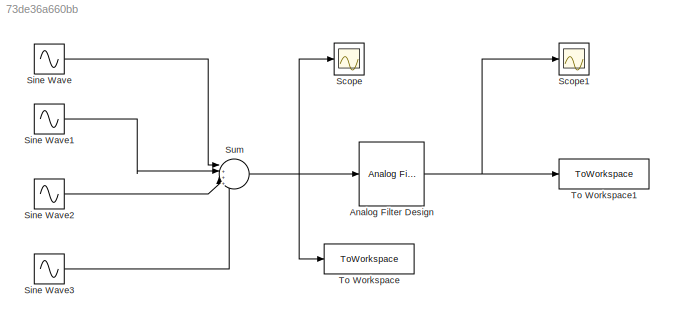
MODEL slx_73de36a660bb
KIND model
CONFIG AbsTol = auto
CONFIG EnableMultiTasking = off
CONFIG FixedStep = 1/512
CONFIG MaxStep = auto
CONFIG MinStep = auto
CONFIG RelTol = 1e-3
CONFIG SampleTimeConstraint = Unconstrained
CONFIG SolverName = FixedStepAuto
CONFIG StartTime = 0.0
CONFIG StopTime = 1.0
BLOCK [Reference] Analog Filter Design  REF=dsparch4/Analog
Filter Design
  SourceBlock = dsparch4/Analog\nFilter Design
  SourceType = Analog Filter Design
BLOCK [Scope] Scope
  Floating = off
  NumInputPorts = 1
  ScopeSpecificationString = Simulink.scopes.TimeScopeBlockCfg('CurrentConfiguration', extmgr.ConfigurationSet(extmgr.Configuration('Core','General UI',true),extmgr.Configuration('Core','Source UI',true),extmgr.Configuration('Sources','WiredSimulink',true),extmgr.Configuration('Visuals','Time Domain',true,'SerializedDisplays',{struct('MinYLimReal','-0.46659','MaxYLimReal','0.46659','YLabelReal','','MinYLimMag','0.00000','MaxY...<+1352ch>
BLOCK [Scope] Scope1
  Floating = off
  NumInputPorts = 1
  ScopeSpecificationString = Simulink.scopes.TimeScopeBlockCfg('CurrentConfiguration', extmgr.ConfigurationSet(extmgr.Configuration('Core','General UI',true),extmgr.Configuration('Core','Source UI',true),extmgr.Configuration('Sources','WiredSimulink',true,'DataLoggingVariableName','ScopeData1'),extmgr.Configuration('Visuals','Time Domain',true,'SerializedDisplays',{struct('MinYLimReal','-0.25425','MaxYLimReal','0.25616','YLab...<+1409ch>
BLOCK [Sin] Sine Wave
  Amplitude = 0.1
  Frequency = 2*pi*7
  SampleTime = 0
BLOCK [Sin] Sine Wave1
  Amplitude = 0.1
  Frequency = 2*pi*18
  SampleTime = 0
BLOCK [Sin] Sine Wave2
  Amplitude = 0.1
  Frequency = 2*pi*46
  SampleTime = 0
BLOCK [Sin] Sine Wave3
  Amplitude = 0.1
  Frequency = 2*pi*65
  SampleTime = 0
BLOCK [Sum] Sum
  Inputs = |++++
BLOCK [ToWorkspace] To Workspace
  FixptAsFi = on
  MaxDataPoints = inf
  SampleTime = -1
  SaveFormat = Structure With Time
  VariableName = sin_unfiltered
BLOCK [ToWorkspace] To Workspace1
  FixptAsFi = on
  MaxDataPoints = inf
  SampleTime = -1
  SaveFormat = Structure With Time
  VariableName = sin_filtered
NET Analog Filter Design:1 -> Scope1:1, To Workspace1:1
LINE Sine Wave1:1 -> Sum:2
LINE Sine Wave2:1 -> Sum:3
LINE Sine Wave3:1 -> Sum:4
LINE Sine Wave:1 -> Sum:1
NET Sum:1 -> Analog Filter Design:1, Scope:1, To Workspace:1
note: NET lines group one-source signal fan-out (src -> all destinations, sorted); 1:1 wires keep LINE
